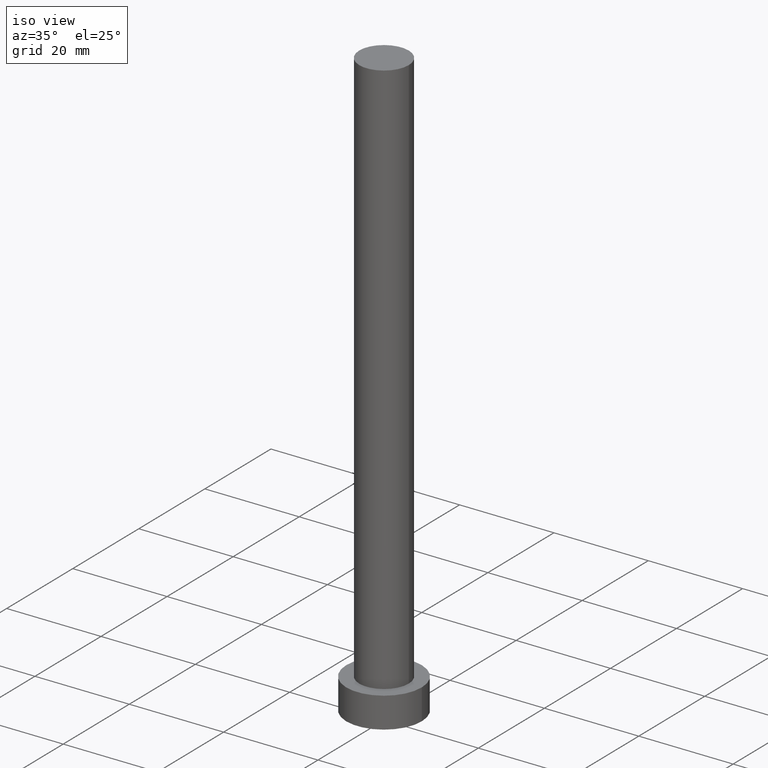
[diagram: clean part render]
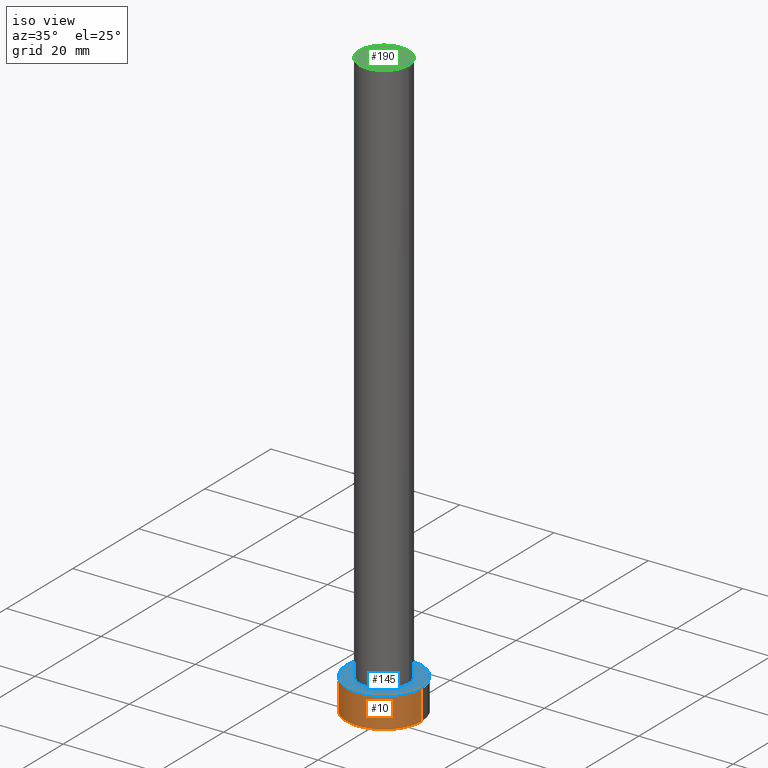
[diagram: same view with three faces highlighted in distinct colors, each labeled with its STEP entity id]
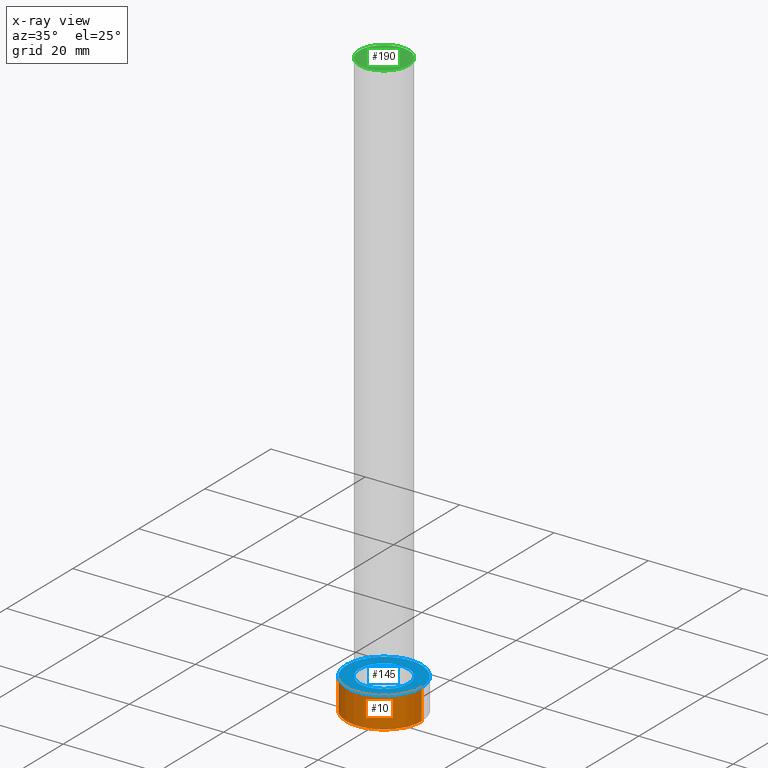
[diagram: x-ray of the same camera — body ghosted, the three highlighted faces saturated]
A machine part, iso view with three faces highlighted in distinct colors.
The next image is the same camera in x-ray (body ghosted, the three faces saturated) — at least one of them is partly hidden behind the body in this view.
Their STEP definitions:

[orange] entity #10 — the highlighted cylindrical surface (partial cylindrical patch) has radius 8 mm, axis along (-0, -0, -1).
#10 = ADVANCED_FACE ( 'NONE', ( #153 ), #169, .T. ) ;
#15 = CARTESIAN_POINT ( 'NONE',  ( 8.000000000000000000, 9.797174393178823685E-16, 6.500000000000000000 ) ) ;
#16 = DIRECTION ( 'NONE',  ( 1.000000000000000000, 0.000000000000000000, 0.000000000000000000 ) ) ;
#29 = CARTESIAN_POINT ( 'NONE',  ( 0.000000000000000000, 0.000000000000000000, 6.500000000000000000 ) ) ;
#34 = DIRECTION ( 'NONE',  ( -0.000000000000000000, -0.000000000000000000, -1.000000000000000000 ) ) ;
#35 = CARTESIAN_POINT ( 'NONE',  ( -8.000000000000000000, 0.000000000000000000, 6.500000000000000000 ) ) ;
#39 = EDGE_CURVE ( 'NONE', #244, #129, #82, .T. ) ;
#41 = EDGE_CURVE ( 'NONE', #123, #165, #142, .T. ) ;
#52 = CARTESIAN_POINT ( 'NONE',  ( 8.000000000000000000, 9.797174393178823685E-16, 6.500000000000000000 ) ) ;
#54 = CARTESIAN_POINT ( 'NONE',  ( 0.000000000000000000, 0.000000000000000000, 0.000000000000000000 ) ) ;
#71 = ORIENTED_EDGE ( 'NONE', *, *, #39, .F. ) ;
#78 = LINE ( 'NONE', #52, #114 ) ;
#82 = CIRCLE ( 'NONE', #227, 8.000000000000000000 ) ;
#98 = DIRECTION ( 'NONE',  ( -0.000000000000000000, -0.000000000000000000, -1.000000000000000000 ) ) ;
#110 = CARTESIAN_POINT ( 'NONE',  ( -8.000000000000000000, 0.000000000000000000, 0.000000000000000000 ) ) ;
#114 = VECTOR ( 'NONE', #34, 1000.000000000000000 ) ;
#115 = VECTOR ( 'NONE', #98, 1000.000000000000000 ) ;
#117 = CARTESIAN_POINT ( 'NONE',  ( -8.000000000000000000, 0.000000000000000000, 6.500000000000000000 ) ) ;
#123 = VERTEX_POINT ( 'NONE', #110 ) ;
#129 = VERTEX_POINT ( 'NONE', #15 ) ;
#137 = EDGE_CURVE ( 'NONE', #129, #165, #78, .T. ) ;
#140 = LINE ( 'NONE', #35, #115 ) ;
#142 = CIRCLE ( 'NONE', #167, 8.000000000000000000 ) ;
#144 = ORIENTED_EDGE ( 'NONE', *, *, #41, .T. ) ;
#152 = CARTESIAN_POINT ( 'NONE',  ( 0.000000000000000000, 0.000000000000000000, 6.500000000000000000 ) ) ;
#153 = FACE_OUTER_BOUND ( 'NONE', #168, .T. ) ;
#165 = VERTEX_POINT ( 'NONE', #230 ) ;
#167 = AXIS2_PLACEMENT_3D ( 'NONE', #54, #171, #173 ) ;
#168 = EDGE_LOOP ( 'NONE', ( #228, #71, #184, #144 ) ) ;
#169 = CYLINDRICAL_SURFACE ( 'NONE', #238, 8.000000000000000000 ) ;
#171 = DIRECTION ( 'NONE',  ( 0.000000000000000000, 0.000000000000000000, 1.000000000000000000 ) ) ;
#173 = DIRECTION ( 'NONE',  ( 1.000000000000000000, 0.000000000000000000, 0.000000000000000000 ) ) ;
#184 = ORIENTED_EDGE ( 'NONE', *, *, #252, .T. ) ;
#195 = DIRECTION ( 'NONE',  ( 0.000000000000000000, 0.000000000000000000, 1.000000000000000000 ) ) ;
#214 = DIRECTION ( 'NONE',  ( -1.000000000000000000, 0.000000000000000000, 0.000000000000000000 ) ) ;
#218 = DIRECTION ( 'NONE',  ( -0.000000000000000000, -0.000000000000000000, -1.000000000000000000 ) ) ;
#227 = AXIS2_PLACEMENT_3D ( 'NONE', #152, #195, #16 ) ;
#228 = ORIENTED_EDGE ( 'NONE', *, *, #137, .F. ) ;
#230 = CARTESIAN_POINT ( 'NONE',  ( 8.000000000000000000, 9.797174393178823685E-16, 0.000000000000000000 ) ) ;
#238 = AXIS2_PLACEMENT_3D ( 'NONE', #29, #218, #214 ) ;
#244 = VERTEX_POINT ( 'NONE', #117 ) ;
#252 = EDGE_CURVE ( 'NONE', #244, #123, #140, .T. ) ;

[blue] entity #145 — the highlighted planar face has unit normal (0, 0, 1).
#15 = CARTESIAN_POINT ( 'NONE',  ( 8.000000000000000000, 9.797174393178823685E-16, 6.500000000000000000 ) ) ;
#16 = DIRECTION ( 'NONE',  ( 1.000000000000000000, 0.000000000000000000, 0.000000000000000000 ) ) ;
#26 = AXIS2_PLACEMENT_3D ( 'NONE', #132, #174, #248 ) ;
#31 = CIRCLE ( 'NONE', #26, 8.000000000000000000 ) ;
#39 = EDGE_CURVE ( 'NONE', #244, #129, #82, .T. ) ;
#40 = AXIS2_PLACEMENT_3D ( 'NONE', #131, #55, #90 ) ;
#44 = ORIENTED_EDGE ( 'NONE', *, *, #39, .T. ) ;
#47 = ORIENTED_EDGE ( 'NONE', *, *, #83, .T. ) ;
#51 = CARTESIAN_POINT ( 'NONE',  ( 0.000000000000000000, 0.000000000000000000, 6.500000000000000000 ) ) ;
#55 = DIRECTION ( 'NONE',  ( 0.000000000000000000, 0.000000000000000000, 1.000000000000000000 ) ) ;
#70 = CIRCLE ( 'NONE', #217, 5.250000000000000888 ) ;
#75 = FACE_OUTER_BOUND ( 'NONE', #205, .T. ) ;
#82 = CIRCLE ( 'NONE', #227, 8.000000000000000000 ) ;
#83 = EDGE_CURVE ( 'NONE', #129, #244, #31, .T. ) ;
#89 = CIRCLE ( 'NONE', #191, 5.250000000000000888 ) ;
#90 = DIRECTION ( 'NONE',  ( 1.000000000000000000, 0.000000000000000000, -0.000000000000000000 ) ) ;
#111 = DIRECTION ( 'NONE',  ( 0.000000000000000000, 0.000000000000000000, 1.000000000000000000 ) ) ;
#112 = EDGE_CURVE ( 'NONE', #229, #247, #70, .T. ) ;
#117 = CARTESIAN_POINT ( 'NONE',  ( -8.000000000000000000, 0.000000000000000000, 6.500000000000000000 ) ) ;
#129 = VERTEX_POINT ( 'NONE', #15 ) ;
#131 = CARTESIAN_POINT ( 'NONE',  ( 0.000000000000000000, 0.000000000000000000, 6.500000000000000000 ) ) ;
#132 = CARTESIAN_POINT ( 'NONE',  ( 0.000000000000000000, 0.000000000000000000, 6.500000000000000000 ) ) ;
#145 = ADVANCED_FACE ( 'NONE', ( #156, #75 ), #250, .T. ) ;
#147 = ORIENTED_EDGE ( 'NONE', *, *, #112, .F. ) ;
#149 = EDGE_LOOP ( 'NONE', ( #147, #243 ) ) ;
#152 = CARTESIAN_POINT ( 'NONE',  ( 0.000000000000000000, 0.000000000000000000, 6.500000000000000000 ) ) ;
#156 = FACE_BOUND ( 'NONE', #149, .T. ) ;
#157 = CARTESIAN_POINT ( 'NONE',  ( 0.000000000000000000, 0.000000000000000000, 6.500000000000000000 ) ) ;
#174 = DIRECTION ( 'NONE',  ( 0.000000000000000000, 0.000000000000000000, 1.000000000000000000 ) ) ;
#189 = DIRECTION ( 'NONE',  ( 1.000000000000000000, 0.000000000000000000, 0.000000000000000000 ) ) ;
#191 = AXIS2_PLACEMENT_3D ( 'NONE', #157, #196, #202 ) ;
#195 = DIRECTION ( 'NONE',  ( 0.000000000000000000, 0.000000000000000000, 1.000000000000000000 ) ) ;
#196 = DIRECTION ( 'NONE',  ( 0.000000000000000000, 0.000000000000000000, 1.000000000000000000 ) ) ;
#197 = CARTESIAN_POINT ( 'NONE',  ( 5.250000000000000888, 6.429395695523605139E-16, 6.500000000000000000 ) ) ;
#202 = DIRECTION ( 'NONE',  ( 1.000000000000000000, 0.000000000000000000, 0.000000000000000000 ) ) ;
#205 = EDGE_LOOP ( 'NONE', ( #44, #47 ) ) ;
#217 = AXIS2_PLACEMENT_3D ( 'NONE', #51, #111, #189 ) ;
#220 = CARTESIAN_POINT ( 'NONE',  ( -5.250000000000000888, 0.000000000000000000, 6.500000000000000000 ) ) ;
#227 = AXIS2_PLACEMENT_3D ( 'NONE', #152, #195, #16 ) ;
#229 = VERTEX_POINT ( 'NONE', #220 ) ;
#237 = EDGE_CURVE ( 'NONE', #247, #229, #89, .T. ) ;
#243 = ORIENTED_EDGE ( 'NONE', *, *, #237, .F. ) ;
#244 = VERTEX_POINT ( 'NONE', #117 ) ;
#247 = VERTEX_POINT ( 'NONE', #197 ) ;
#248 = DIRECTION ( 'NONE',  ( 1.000000000000000000, 0.000000000000000000, 0.000000000000000000 ) ) ;
#250 = PLANE ( 'NONE',  #40 ) ;

[green] entity #190 — the highlighted planar face has unit normal (0, 0, 1).
#12 = CARTESIAN_POINT ( 'NONE',  ( 5.250000000000000888, 6.429395695523605139E-16, 125.0000000000000000 ) ) ;
#22 = CIRCLE ( 'NONE', #253, 5.250000000000000888 ) ;
#23 = VERTEX_POINT ( 'NONE', #12 ) ;
#27 = VERTEX_POINT ( 'NONE', #130 ) ;
#38 = DIRECTION ( 'NONE',  ( 1.000000000000000000, 0.000000000000000000, -0.000000000000000000 ) ) ;
#48 = EDGE_LOOP ( 'NONE', ( #49, #67 ) ) ;
#49 = ORIENTED_EDGE ( 'NONE', *, *, #246, .T. ) ;
#50 = FACE_OUTER_BOUND ( 'NONE', #48, .T. ) ;
#63 = CARTESIAN_POINT ( 'NONE',  ( 0.000000000000000000, 0.000000000000000000, 125.0000000000000000 ) ) ;
#64 = AXIS2_PLACEMENT_3D ( 'NONE', #92, #151, #88 ) ;
#67 = ORIENTED_EDGE ( 'NONE', *, *, #164, .T. ) ;
#88 = DIRECTION ( 'NONE',  ( 1.000000000000000000, 0.000000000000000000, 0.000000000000000000 ) ) ;
#92 = CARTESIAN_POINT ( 'NONE',  ( 0.000000000000000000, 0.000000000000000000, 125.0000000000000000 ) ) ;
#121 = DIRECTION ( 'NONE',  ( 0.000000000000000000, 0.000000000000000000, 1.000000000000000000 ) ) ;
#130 = CARTESIAN_POINT ( 'NONE',  ( -5.250000000000000888, 0.000000000000000000, 125.0000000000000000 ) ) ;
#139 = AXIS2_PLACEMENT_3D ( 'NONE', #249, #242, #38 ) ;
#151 = DIRECTION ( 'NONE',  ( 0.000000000000000000, 0.000000000000000000, 1.000000000000000000 ) ) ;
#159 = DIRECTION ( 'NONE',  ( 1.000000000000000000, 0.000000000000000000, 0.000000000000000000 ) ) ;
#164 = EDGE_CURVE ( 'NONE', #23, #27, #206, .T. ) ;
#190 = ADVANCED_FACE ( 'NONE', ( #50 ), #211, .T. ) ;
#206 = CIRCLE ( 'NONE', #64, 5.250000000000000888 ) ;
#211 = PLANE ( 'NONE',  #139 ) ;
#242 = DIRECTION ( 'NONE',  ( 0.000000000000000000, 0.000000000000000000, 1.000000000000000000 ) ) ;
#246 = EDGE_CURVE ( 'NONE', #27, #23, #22, .T. ) ;
#249 = CARTESIAN_POINT ( 'NONE',  ( 0.000000000000000000, 0.000000000000000000, 125.0000000000000000 ) ) ;
#253 = AXIS2_PLACEMENT_3D ( 'NONE', #63, #121, #159 ) ;